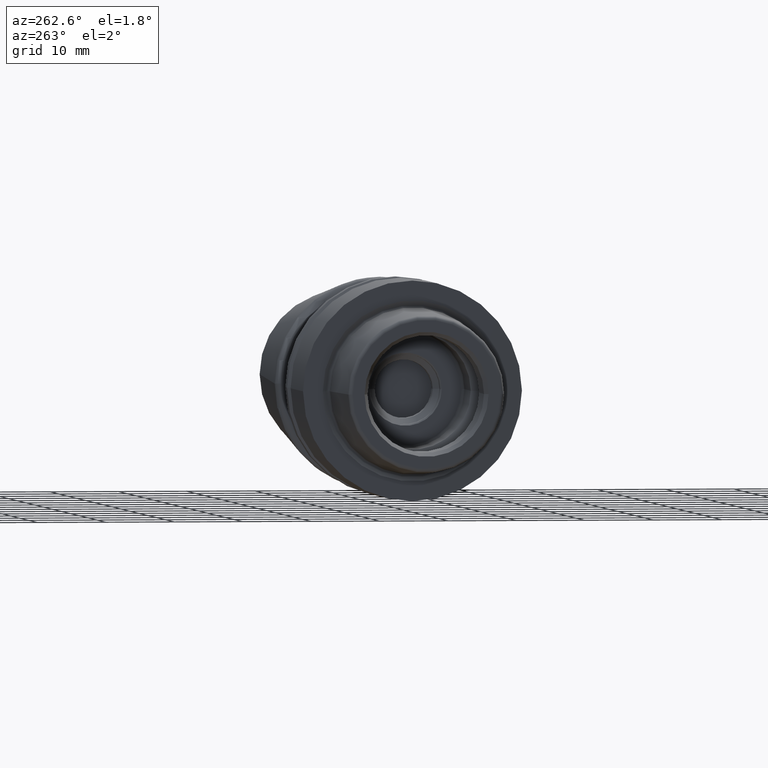
[diagram: clean part render]
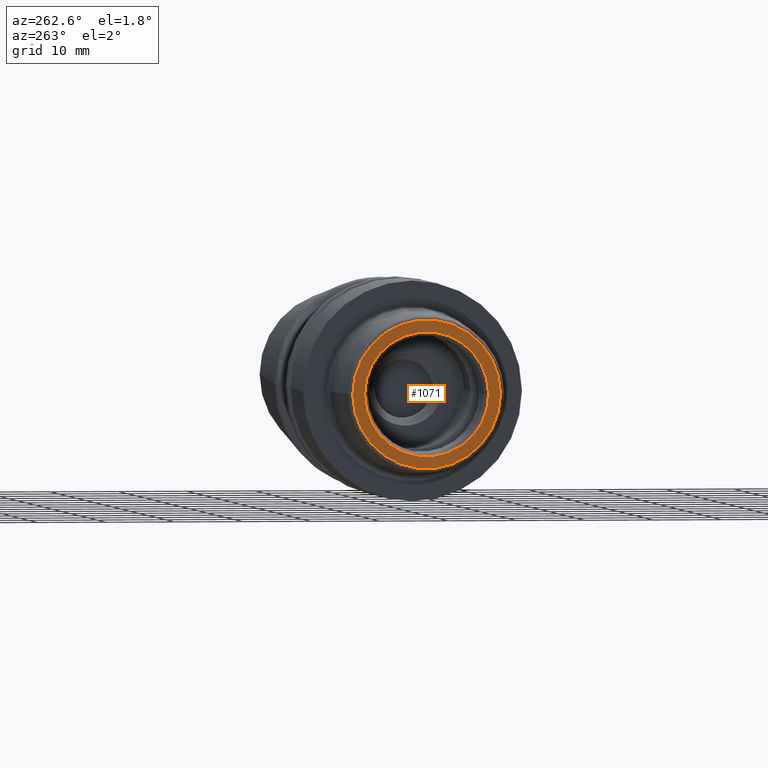
[diagram: same view with one face highlighted and labeled with its STEP entity id]
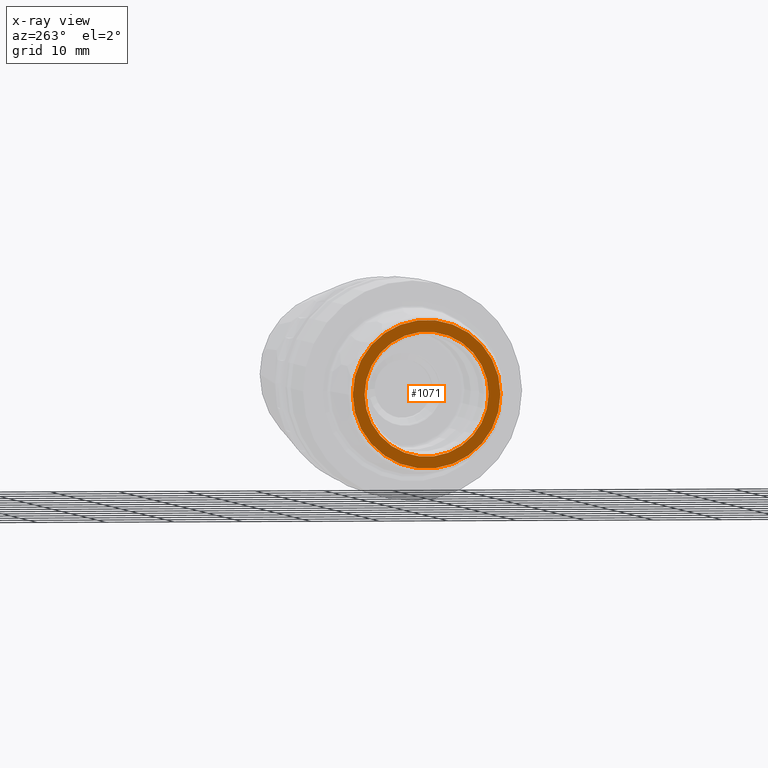
[diagram: x-ray of the same camera — body ghosted, the highlighted face saturated]
A machine part, auxiliary view. The second image highlights one B-rep face of the part: STEP entity #1071.
The next image is the same camera in x-ray: the body ghosted, the highlighted face saturated — about 0% of this face is hidden behind the body in this view.
In plain terms, the highlighted planar face has unit normal (1, 0, 0).
Its self-contained STEP definition (entity closure, byte-faithful):
#58=CARTESIAN_POINT('',(-1.59E1,0.E0,0.E0));
#59=DIRECTION('',(-1.E0,0.E0,0.E0));
#60=DIRECTION('',(0.E0,1.E0,0.E0));
#61=AXIS2_PLACEMENT_3D('',#58,#59,#60);
#63=CARTESIAN_POINT('',(-1.59E1,0.E0,0.E0));
#64=DIRECTION('',(1.E0,0.E0,0.E0));
#65=DIRECTION('',(0.E0,1.E0,0.E0));
#66=AXIS2_PLACEMENT_3D('',#63,#64,#65);
#68=CARTESIAN_POINT('',(-1.59E1,0.E0,0.E0));
#69=DIRECTION('',(1.E0,0.E0,0.E0));
#70=DIRECTION('',(0.E0,1.E0,0.E0));
#71=AXIS2_PLACEMENT_3D('',#68,#69,#70);
#73=CARTESIAN_POINT('',(-1.59E1,0.E0,0.E0));
#74=DIRECTION('',(1.E0,0.E0,0.E0));
#75=DIRECTION('',(0.E0,-1.E0,0.E0));
#76=AXIS2_PLACEMENT_3D('',#73,#74,#75);
#814=CARTESIAN_POINT('',(-1.59E1,1.079650423598E1,0.E0));
#815=VERTEX_POINT('',#814);
#816=CARTESIAN_POINT('',(-1.59E1,-1.079650423598E1,0.E0));
#817=VERTEX_POINT('',#816);
#890=CARTESIAN_POINT('',(-1.59E1,9.065982755730E0,0.E0));
#891=VERTEX_POINT('',#890);
#892=CARTESIAN_POINT('',(-1.59E1,-9.065982755730E0,0.E0));
#893=VERTEX_POINT('',#892);
#1056=CARTESIAN_POINT('',(-1.59E1,0.E0,0.E0));
#1057=DIRECTION('',(1.E0,0.E0,0.E0));
#1058=DIRECTION('',(0.E0,-1.E0,0.E0));
#1059=AXIS2_PLACEMENT_3D('',#1056,#1057,#1058);
#1060=PLANE('',#1059);
#1061=ORIENTED_EDGE('',*,*,#1035,.F.);
#1062=ORIENTED_EDGE('',*,*,#1051,.T.);
#1063=EDGE_LOOP('',(#1061,#1062));
#1064=FACE_OUTER_BOUND('',#1063,.F.);
#1066=ORIENTED_EDGE('',*,*,#1065,.F.);
#1068=ORIENTED_EDGE('',*,*,#1067,.F.);
#1069=EDGE_LOOP('',(#1066,#1068));
#1070=FACE_BOUND('',#1069,.F.);
#1071=ADVANCED_FACE('',(#1064,#1070),#1060,.F.);
#62=CIRCLE('',#61,1.079650423598E1);
#67=CIRCLE('',#66,1.079650423598E1);
#72=CIRCLE('',#71,9.065982755730E0);
#77=CIRCLE('',#76,9.065982755730E0);
#1035=EDGE_CURVE('',#815,#817,#62,.T.);
#1051=EDGE_CURVE('',#815,#817,#67,.T.);
#1065=EDGE_CURVE('',#891,#893,#72,.T.);
#1067=EDGE_CURVE('',#893,#891,#77,.T.);